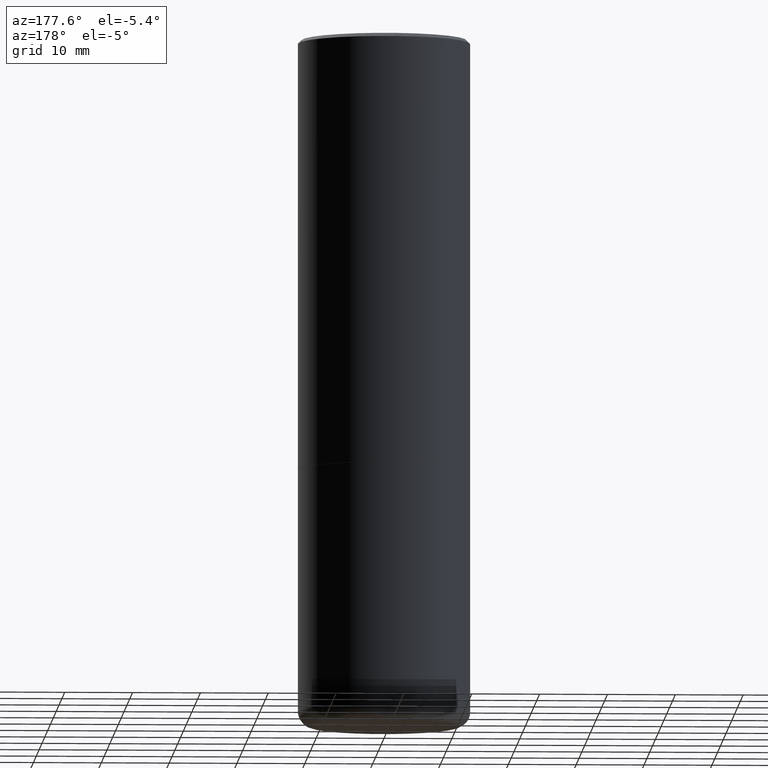
[diagram: clean part render]
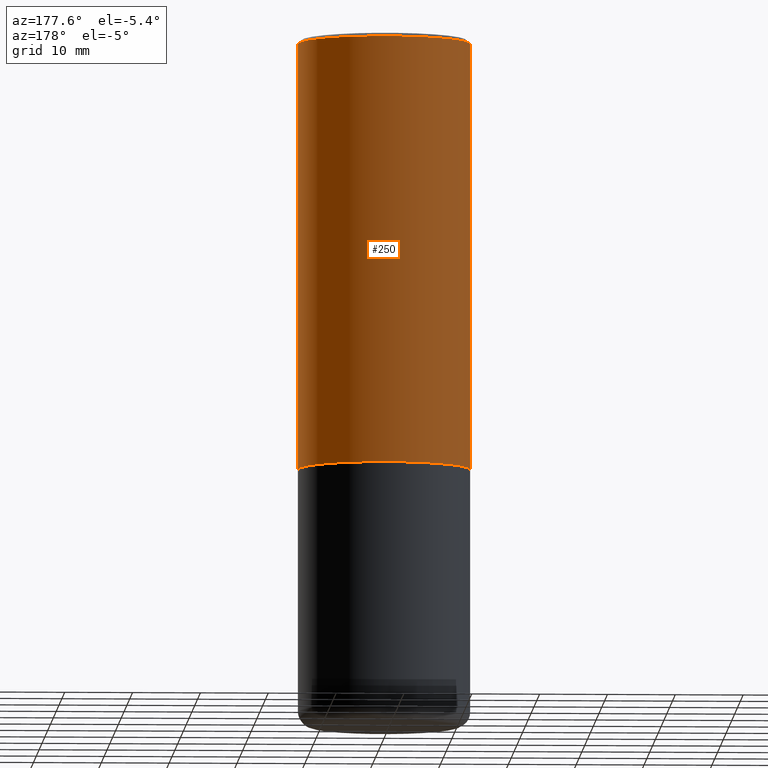
[diagram: same view with one face highlighted and labeled with its STEP entity id]
A machine part, auxiliary view. The second image highlights one B-rep face of the part: STEP entity #250.
In plain terms, the highlighted cylindrical surface (partial cylindrical patch) has radius 12.7 mm, axis along (-0, 0, 1).
Its self-contained STEP definition (entity closure, byte-faithful):
#2 = AXIS2_PLACEMENT_3D ( 'NONE', #208, #34, #345 ) ;
#13 = CARTESIAN_POINT ( 'NONE',  ( 6.111226546656657010E-29, -8.725211865769021935E-15, -2.499000000000000110 ) ) ;
#15 = LINE ( 'NONE', #431, #335 ) ;
#30 = CARTESIAN_POINT ( 'NONE',  ( -0.4999999999999996669, 3.421651712066268085E-15, -0.02000000000000002123 ) ) ;
#34 = DIRECTION ( 'NONE',  ( -2.445468806185136597E-29, 3.491481338843145583E-15, 1.000000000000000000 ) ) ;
#35 = ORIENTED_EDGE ( 'NONE', *, *, #299, .T. ) ;
#47 = CARTESIAN_POINT ( 'NONE',  ( -0.4999999999999998335, 3.552713678800499746E-15, -2.459467545127452330E-29 ) ) ;
#58 = EDGE_CURVE ( 'NONE', #350, #138, #15, .T. ) ;
#73 = CYLINDRICAL_SURFACE ( 'NONE', #2, 0.4999999999999998335 ) ;
#75 = EDGE_CURVE ( 'NONE', #138, #427, #301, .T. ) ;
#93 = VERTEX_POINT ( 'NONE', #199 ) ;
#97 = CIRCLE ( 'NONE', #323, 0.5000000000000000000 ) ;
#125 = DIRECTION ( 'NONE',  ( -2.445468806185136597E-29, 3.491481338843145583E-15, 1.000000000000000000 ) ) ;
#132 = ORIENTED_EDGE ( 'NONE', *, *, #75, .F. ) ;
#138 = VERTEX_POINT ( 'NONE', #308 ) ;
#147 = AXIS2_PLACEMENT_3D ( 'NONE', #400, #125, #406 ) ;
#183 = DIRECTION ( 'NONE',  ( -2.445468806185136597E-29, 3.491481338843145583E-15, 1.000000000000000000 ) ) ;
#185 = DIRECTION ( 'NONE',  ( -2.445468806185136877E-29, 3.491481338843145188E-15, 1.000000000000000000 ) ) ;
#189 = CARTESIAN_POINT ( 'NONE',  ( 0.5000000000000000000, -1.221669320461215371E-14, -2.499000000000000110 ) ) ;
#195 = EDGE_CURVE ( 'NONE', #93, #427, #222, .T. ) ;
#199 = CARTESIAN_POINT ( 'NONE',  ( -0.5000000000000000000, -8.448070674724403070E-16, -2.499000000000000110 ) ) ;
#200 = EDGE_LOOP ( 'NONE', ( #35, #251, #132, #311 ) ) ;
#208 = CARTESIAN_POINT ( 'NONE',  ( 0.000000000000000000, 0.000000000000000000, 0.000000000000000000 ) ) ;
#222 = LINE ( 'NONE', #47, #410 ) ;
#238 = FACE_OUTER_BOUND ( 'NONE', #200, .T. ) ;
#250 = ADVANCED_FACE ( 'NONE', ( #238 ), #73, .T. ) ;
#251 = ORIENTED_EDGE ( 'NONE', *, *, #195, .T. ) ;
#287 = DIRECTION ( 'NONE',  ( -2.445468806185136877E-29, 3.491481338843145188E-15, 1.000000000000000000 ) ) ;
#299 = EDGE_CURVE ( 'NONE', #350, #93, #97, .T. ) ;
#301 = CIRCLE ( 'NONE', #147, 0.4999999999999996669 ) ;
#308 = CARTESIAN_POINT ( 'NONE',  ( 0.4999999999999996669, -3.500078625662626318E-15, -0.02000000000000002123 ) ) ;
#311 = ORIENTED_EDGE ( 'NONE', *, *, #58, .F. ) ;
#323 = AXIS2_PLACEMENT_3D ( 'NONE', #13, #183, #364 ) ;
#335 = VECTOR ( 'NONE', #185, 39.37007874015748143 ) ;
#345 = DIRECTION ( 'NONE',  ( 1.000000000000000000, -6.982962677686267499E-15, 4.876176775795936353E-29 ) ) ;
#350 = VERTEX_POINT ( 'NONE', #189 ) ;
#364 = DIRECTION ( 'NONE',  ( 1.000000000000000000, -6.982962677686265133E-15, 0.000000000000000000 ) ) ;
#400 = CARTESIAN_POINT ( 'NONE',  ( 4.890937612370278413E-31, -6.982962677686297772E-17, -0.02000000000000002123 ) ) ;
#406 = DIRECTION ( 'NONE',  ( 1.000000000000000000, -6.982962677686266711E-15, 0.000000000000000000 ) ) ;
#410 = VECTOR ( 'NONE', #287, 39.37007874015748143 ) ;
#427 = VERTEX_POINT ( 'NONE', #30 ) ;
#431 = CARTESIAN_POINT ( 'NONE',  ( 0.4999999999999998335, -3.491481338843132566E-15, 2.438088387897967336E-29 ) ) ;